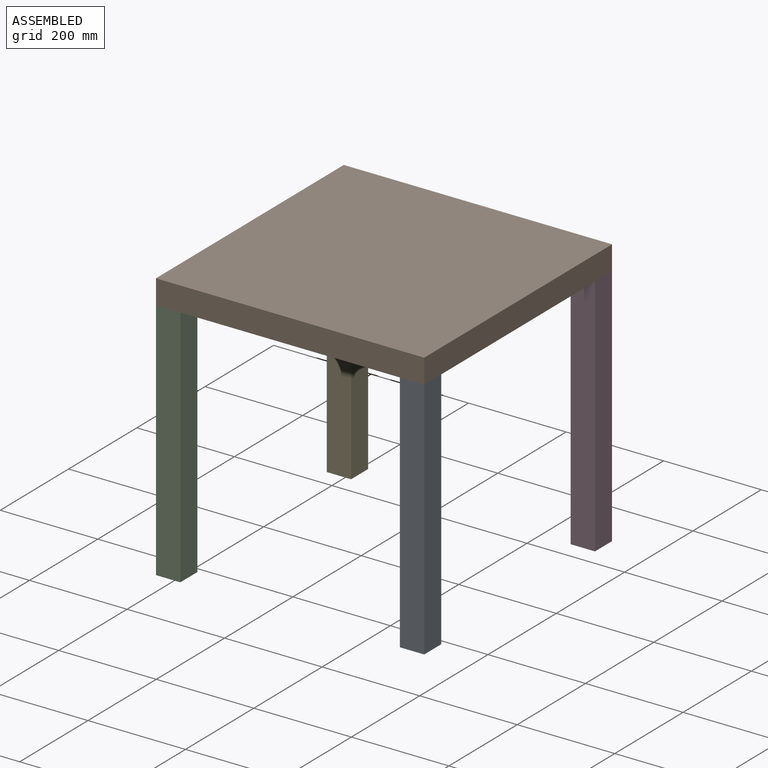
[diagram: assembled view]
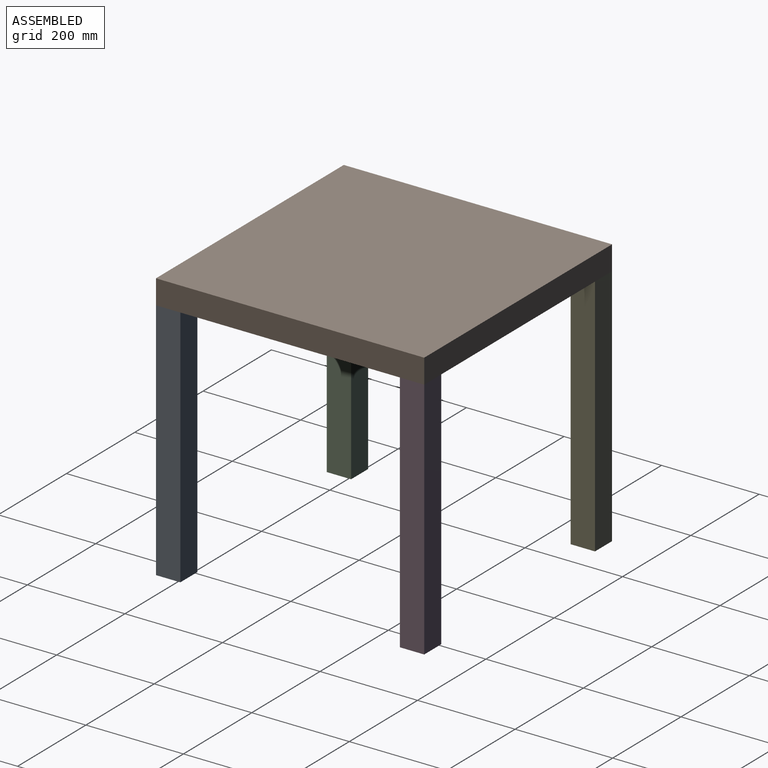
[diagram: assembled view, second angle]
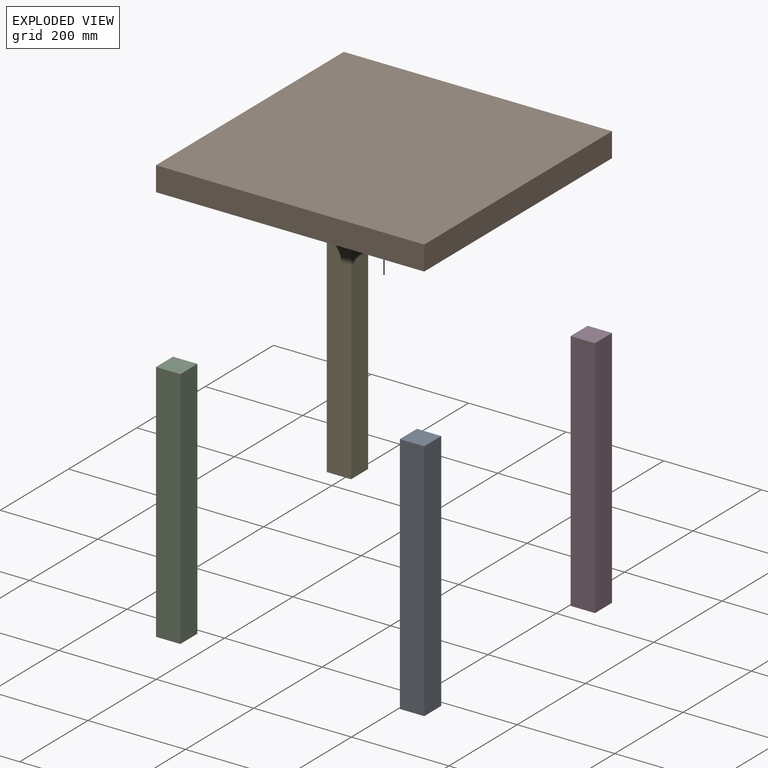
[diagram: exploded view]
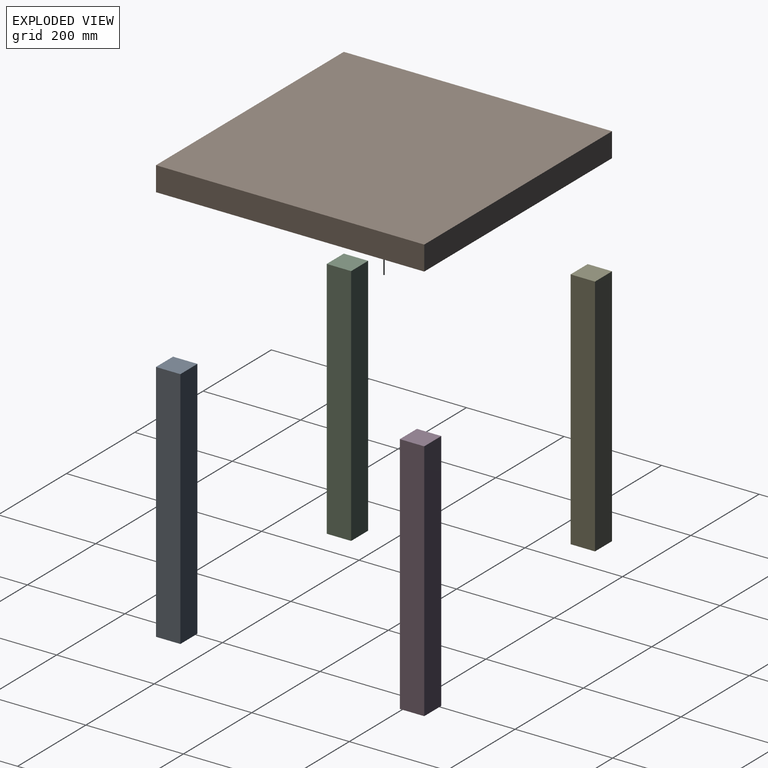
[diagram: exploded view, second angle]
ASSEMBLY  parts=5 mates=4
PART A: 6 faces, bbox 50x50x500 mm
  f0: plane 500x50mm, normal (1,0,0), area 25000mm2, adj f1,f3,f4,f5
  f1: plane 500x50mm, normal (0,1,0), area 25000mm2, adj f0,f2,f4,f5
  f2: plane 500x50mm, normal (-1,0,0), area 25000mm2, adj f1,f3,f4,f5
  f3: plane 500x50mm, normal (0,-1,0), area 25000mm2, adj f0,f2,f4,f5
  f4: plane 50x50mm, normal (0,0,1), area 2500mm2, adj f0,f1,f2,f3
  f5: plane 50x50mm, normal (0,0,-1), area 2500mm2, adj f0,f1,f2,f3
PART B: 6 faces, bbox 550x550x50 mm
  f0: plane 550x50mm, normal (1,0,0), area 27500mm2, adj f1,f3,f4,f5
  f1: plane 550x50mm, normal (0,1,0), area 27500mm2, adj f0,f2,f4,f5
  f2: plane 550x50mm, normal (-1,0,0), area 27500mm2, adj f1,f3,f4,f5
  f3: plane 550x50mm, normal (0,-1,0), area 27500mm2, adj f0,f2,f4,f5
  f4: plane 550x550mm, normal (0,0,1), area 302500mm2, adj f0,f1,f2,f3
  f5: plane 550x550mm, normal (0,0,-1), area 302500mm2, adj f0,f1,f2,f3
PART C: same geometry as A
PART D: same geometry as A
PART E: same geometry as A
PLACE A t=(45.34,-262.08,238.13)mm
PLACE B t=(-204.66,-12.08,738.13)mm
PLACE C t=(-454.66,-262.08,238.13)mm
PLACE D t=(45.34,237.92,238.13)mm
PLACE E t=(-454.66,237.92,238.13)mm
MATE fastened C.f4 <-> B.f5  axis (0,0,1) through (-479.66,-287.08,738.13)mm
MATE fastened A.f4 <-> B.f5  axis (0,0,1) through (70.34,-287.08,738.13)mm
MATE fastened E.f4 <-> B.f5  axis (0,0,1) through (-479.66,262.92,738.13)mm
MATE fastened D.f4 <-> B.f5  axis (0,0,1) through (70.34,262.92,738.13)mm
